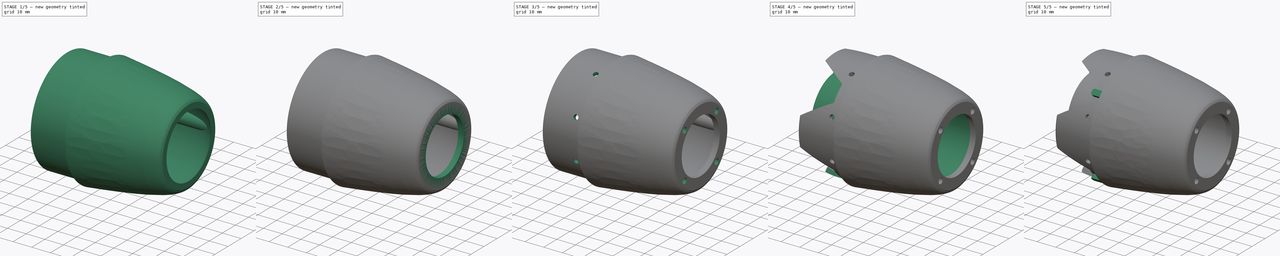
[diagram: build sequence overview — one tinted view per stage of 5, left to right]
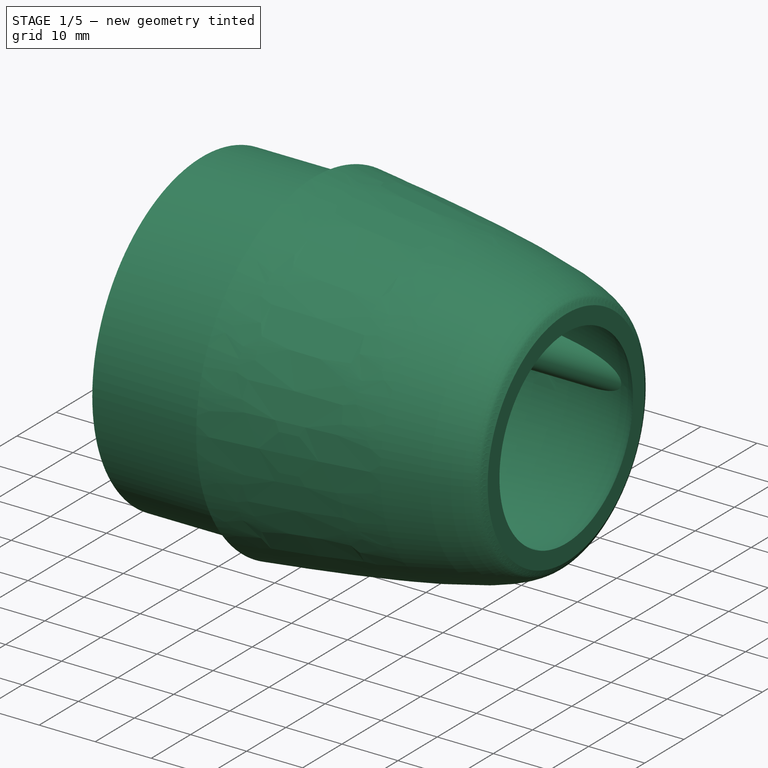
[diagram: stage 1 of 5 — iso view after this stage's code; geometry added in this stage tinted green]
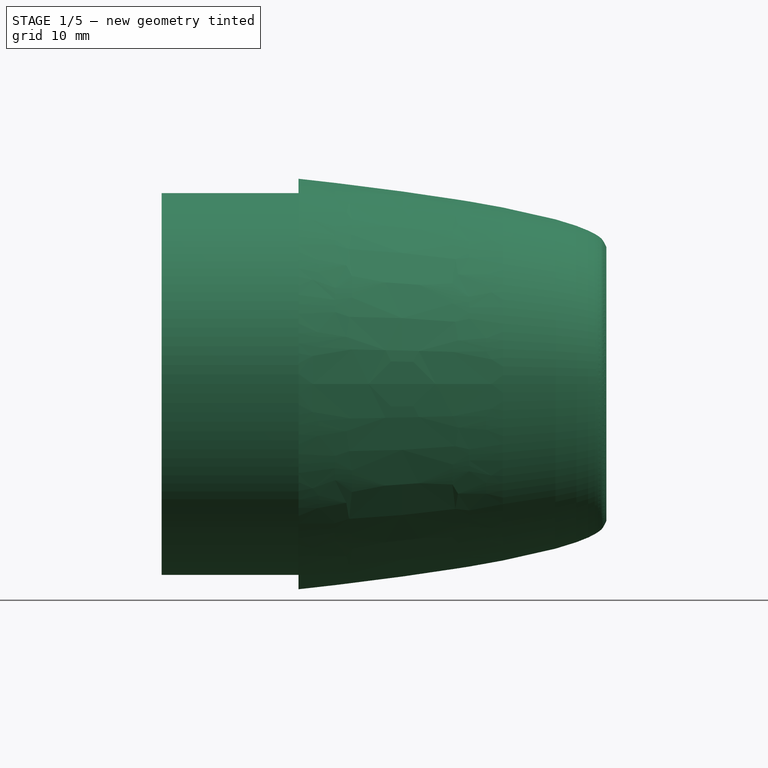
[diagram: stage 1 of 5 — front view after this stage's code; geometry added in this stage tinted green]
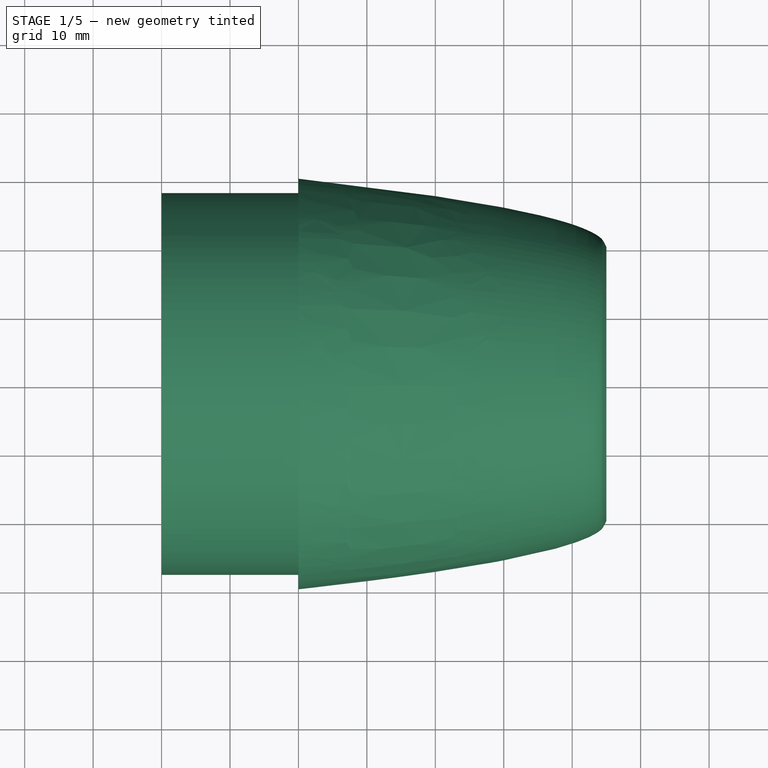
[diagram: stage 1 of 5 — top view after this stage's code; geometry added in this stage tinted green]
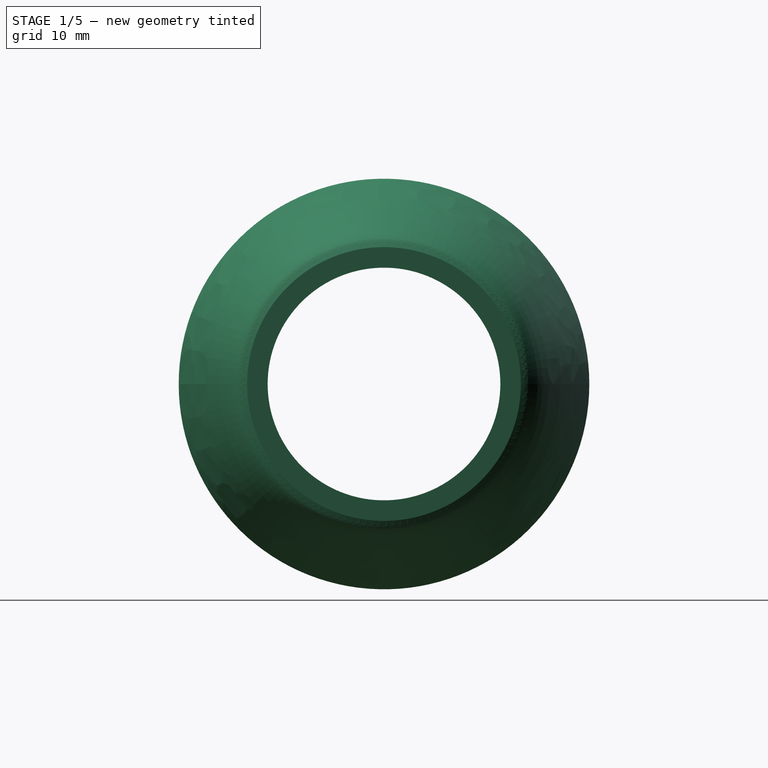
[diagram: stage 1 of 5 — right view after this stage's code; geometry added in this stage tinted green]
FCSTD DOCUMENT  (FreeCAD 1.0R39319 (Git))
Label: rear_transition
License: All rights reserved
LicenseURL: https://en.wikipedia.org/wiki/All_rights_reserved
objects: Sketcher::SketchObject×15, PartDesign::PolarPattern×9, PartDesign::Pocket×6, PartDesign::Pad×5, PartDesign::Plane×4, PartDesign::Fillet×3, PartDesign::Body×2, Part::FeaturePython×1, PartDesign::FeatureBase×1, PartDesign::Revolution×1
note: 102 computed .brp shape members not serialized (recipe doc carries the construction recipe); baked Part::Feature solids carry a one-line shape summary decoded from their .brp

FEATURE [Part::FeaturePython] Transition  # WARN: FeaturePython — macro-defined, semantics opaque (R4)
  AftAutoDiameter = false
  AftCapBarWidth = 3
  AftCapStyle = 0
  AftDiameter = 40
  AftShoulder = false
  AftShoulderAutoDiameter = false
  AftShoulderDiameter = 10
  AftShoulderLength = 0.1
  AftShoulderThickness = 3
  AngleOffset = 0
  AxialOffset = 0
  Clipped = false
  Coefficient = 0.5
  CoreDiameter = 10
  ForeAutoDiameter = false
  ForeCapBarWidth = 3
  ForeCapStyle = 0
  ForeDiameter = 60
  ForeShoulder = true
  ForeShoulderAutoDiameter = false
  ForeShoulderDiameter = 55.8
  ForeShoulderLength = 20
  ForeShoulderThickness = 2
  Length = 45
  LocationReference = 2
  RadialOffset = 0
  RadialReference = 0
  Resolution = 100
  Thickness = 3
  TransitionStyle = 2
  TransitionType = 6
FEATURE [PartDesign::FeatureBase] BaseFeature
  BaseFeature = -> Transition
  Suppressed = false
FEATURE [Sketcher::SketchObject] Sketch
  ArcFitTolerance = 1e-06
  AttachmentSupport = -> [BaseFeature]
  ExternalGeometry = -> [BaseFeature]
  FullyConstrained = false
  MakeInternals = false
  MapMode = 5
  Placement = pos=(-20,0,0) rot=(0.57735,-0.57735,-0.57735;2.0944rad)
  sketch-geometry (8):
    g0: ArcOfCircle CenterX=0 CenterY=23.4279 CenterZ=0 NormalX=0 NormalY=0 NormalZ=1 AngleXU=0 Radius=3.5 StartAngle=3.21795 EndAngle=6.20683
    g1: LineSegment [constr] StartX=-3.4898 StartY=23.1609 StartZ=0 EndX=3.4898 EndY=23.1609 EndZ=0
    g2: ArcOfCircle CenterX=-5.56881 CenterY=23.1609 CenterZ=0 NormalX=0 NormalY=0 NormalZ=1 AngleXU=0 Radius=2.07901 StartAngle=5e-16 EndAngle=1.80676
    g3: ArcOfCircle CenterX=5.56881 CenterY=23.1609 CenterZ=0 NormalX=0 NormalY=0 NormalZ=1 AngleXU=0 Radius=2.07901 StartAngle=1.33484 EndAngle=3.14159
    g4: ArcOfCircle CenterX=0 CenterY=0 CenterZ=0 NormalX=0 NormalY=0 NormalZ=1 AngleXU=0 Radius=27.6434 StartAngle=1.33484 EndAngle=1.80676
    g5: LineSegment StartX=-6.05483 StartY=25.1823 StartZ=0 EndX=-6.46241 EndY=26.8775 EndZ=0
    g6: LineSegment StartX=6.05483 StartY=25.1823 StartZ=0 EndX=6.46241 EndY=26.8775 EndZ=0
    g7: LineSegment [constr] StartX=-3.00543 StartY=26.6609 StartZ=0 EndX=2.84862 EndY=26.6609 EndZ=0
  constraints (20):
    c: Diameter(g0) = 7
    c: PointOnObject(g0,g-2)
    c: Horizontal(g1)
    c: Perpendicular(g2,g1)
    c: Perpendicular(g3,g1)
    c: Coincident(g4,g-1)
    c: Coincident(g3,g6)
    c: Coincident(g0,g3)
    c: Perpendicular(g4,g5) = 4.71239
    c: Perpendicular(g4,g6) = 4.71239
    c: Coincident(g5,g2)
    c: Coincident(g0,g1)
    c: Horizontal(g7)
    c: Tangent(g7,g-3)
    c: DistanceY(g1,g7) = 3.5
    c: Coincident(g2,g0)
    c: Coincident(g1,g0)
    c: Tangent(g3,g-4) = -1.5708
    c: Tangent(g2,g-4) = -1.5708
    c: DistanceY(g4,g0) = 23.4279
FEATURE [PartDesign::Pad] Pad  label="sede_tondo_ensterno"
  BaseFeature = -> BaseFeature
  Direction = (-1,0,0)
  Length = 10
  Length2 = 10
  Profile = -> Sketch
  ReferenceAxis = -> Sketch [N_Axis]
  Refine = true
  Suppressed = false
  Type = 5
FEATURE [Sketcher::SketchObject] Sketch001
  ArcFitTolerance = 1e-06
  AttachmentSupport = -> [Pad]
  ExternalGeometry = -> [Pad]
  FullyConstrained = true
  MakeInternals = false
  MapMode = 5
  Placement = pos=(-20,0,0) rot=(0.57735,-0.57735,-0.57735;2.0944rad)
  sketch-geometry (1):
    g0: Circle CenterX=0 CenterY=23.4279 CenterZ=0 NormalX=0 NormalY=0 NormalZ=1 AngleXU=0 Radius=2.6
  constraints (2):
    c: Diameter(g0) = 5.2
    c: Coincident(g0,g-3)
FEATURE [PartDesign::Pocket] Pocket  label="sede_tondo_interno"
  BaseFeature = -> Pad
  Direction = (1,0,0)
  Length = 30
  Length2 = 5
  Profile = -> Sketch001
  ReferenceAxis = -> Sketch001 [N_Axis]
  Refine = true
  Suppressed = false
  Type = 0
FEATURE [PartDesign::PolarPattern] PolarPattern
  Angle = 360
  Axis = -> Sketch [N_Axis]
  BaseFeature = -> Pocket
  Mode = 0
  Occurrences = 4
  Offset = 120
  Originals = -> [Pad]
  Refine = true
  Suppressed = false
  TransformMode = 0
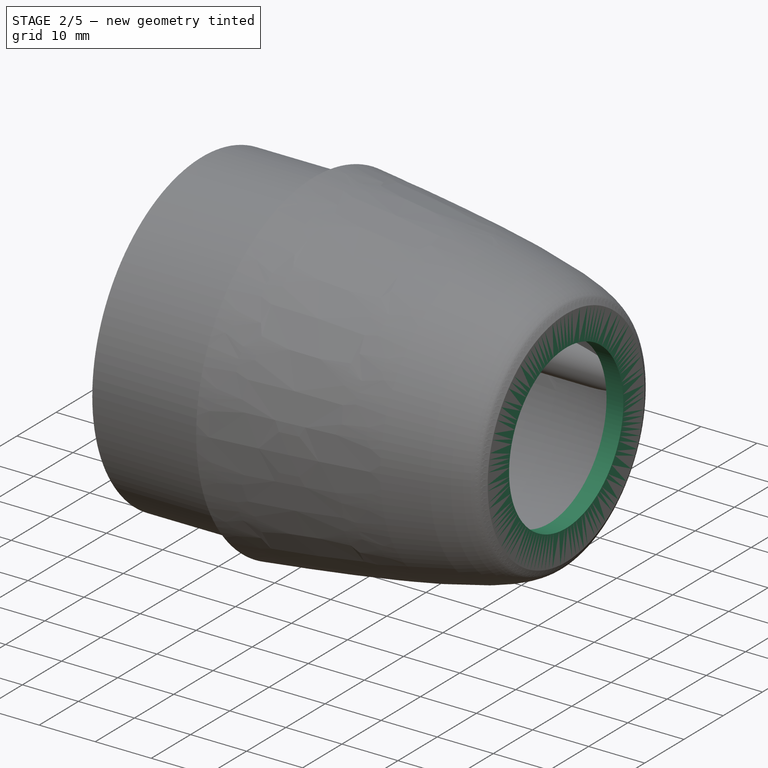
[diagram: stage 2 of 5 — iso view after this stage's code; geometry added in this stage tinted green]
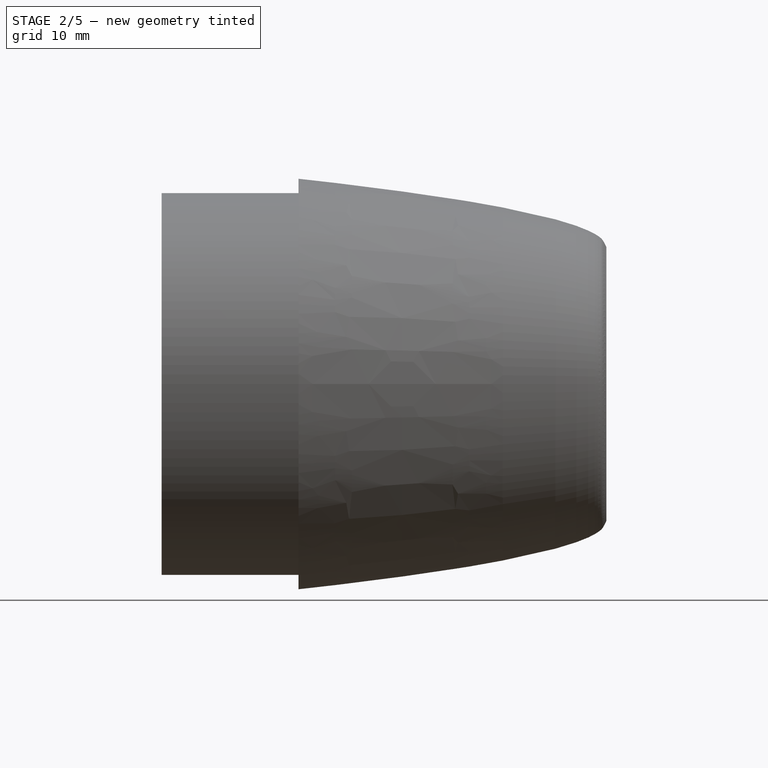
[diagram: stage 2 of 5 — front view after this stage's code; geometry added in this stage tinted green]
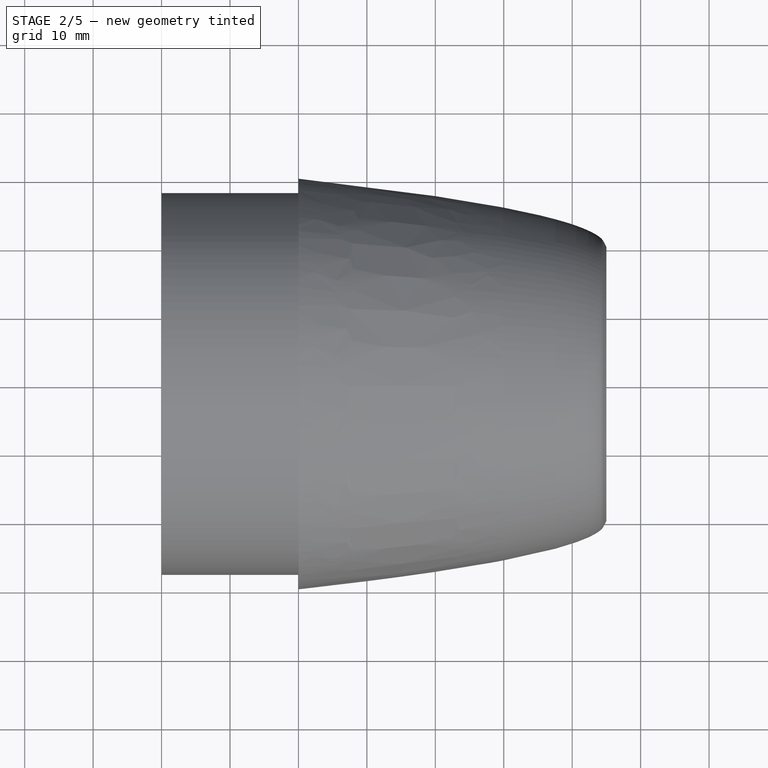
[diagram: stage 2 of 5 — top view after this stage's code; geometry added in this stage tinted green]
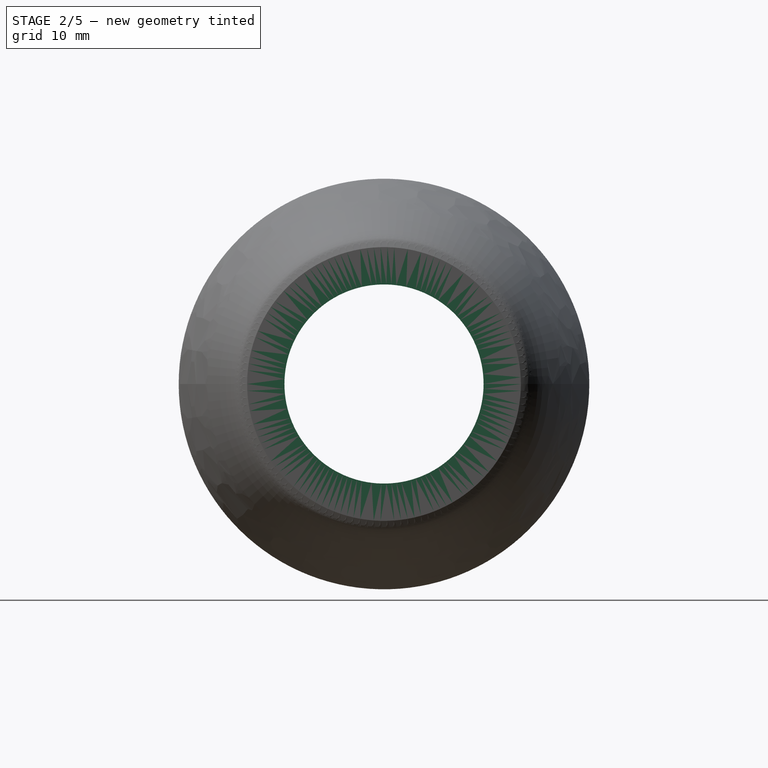
[diagram: stage 2 of 5 — right view after this stage's code; geometry added in this stage tinted green]
FEATURE [PartDesign::PolarPattern] PolarPattern001
  Angle = 360
  Axis = -> Sketch001 [N_Axis]
  BaseFeature = -> PolarPattern
  Mode = 0
  Occurrences = 4
  Offset = 120
  Originals = -> [Pocket]
  Refine = true
  Suppressed = false
  TransformMode = 0
FEATURE [Sketcher::SketchObject] Sketch002
  ArcFitTolerance = 1e-06
  AttachmentSupport = -> [XY_Plane]
  ExternalGeometry = -> [PolarPattern001]
  FullyConstrained = true
  MakeInternals = false
  MapMode = 5
  sketch-geometry (4):
    g0: LineSegment StartX=42 StartY=14.55 StartZ=0 EndX=45 EndY=14.55 EndZ=0
    g1: LineSegment StartX=45 StartY=14.55 StartZ=0 EndX=45 EndY=20 EndZ=0
    g2: LineSegment StartX=45 StartY=20 StartZ=0 EndX=42 EndY=20 EndZ=0
    g3: LineSegment StartX=42 StartY=20 StartZ=0 EndX=42 EndY=14.55 EndZ=0
  constraints (11):
    c: Coincident(g0,g1)
    c: Coincident(g1,g2)
    c: Coincident(g2,g3)
    c: Coincident(g3,g0)
    c: Horizontal(g0)
    c: Horizontal(g2)
    c: Vertical(g1)
    c: Vertical(g3)
    c: Coincident(g1,g-3)
    c: DistanceX(g0,g0) = 3
    c: DistanceY(g-1,g0) = 14.55
FEATURE [PartDesign::Revolution] Revolution  label="base"
  Angle = 360
  Angle2 = 60
  Axis = (1,0,0)
  Base = (0,0,0)
  BaseFeature = -> PolarPattern001
  Profile = -> Sketch002
  ReferenceAxis = -> Sketch002 [H_Axis]
  Refine = true
  Suppressed = false
  Type = 0
FEATURE [Sketcher::SketchObject] Sketch004
  ArcFitTolerance = 1e-06
  AttachmentSupport = -> [Revolution]
  ExternalGeometry = -> [Revolution]
  FullyConstrained = true
  MakeInternals = false
  MapMode = 5
  Placement = pos=(10,0,0) rot=(0.57735,-0.57735,-0.57735;2.0944rad)
  sketch-geometry (1):
    g0: Circle CenterX=0 CenterY=23.4279 CenterZ=0 NormalX=0 NormalY=0 NormalZ=1 AngleXU=0 Radius=1.25
  constraints (2):
    c: Diameter(g0) = 2.5
    c: Coincident(g0,g-3)
FEATURE [PartDesign::Pad] Pad001  label="sede_tondo_interno_1"
  BaseFeature = -> Revolution
  Direction = (-1,0,0)
  Length = 10
  Length2 = 10
  Profile = -> Sketch004
  ReferenceAxis = -> Sketch004 [N_Axis]
  Refine = true
  Suppressed = false
  Type = 0
FEATURE [PartDesign::PolarPattern] PolarPattern002
  Angle = 360
  Axis = -> Sketch004 [N_Axis]
  BaseFeature = -> Pad001
  Mode = 0
  Occurrences = 4
  Offset = 120
  Originals = -> [Pad001]
  Refine = true
  Suppressed = false
  TransformMode = 0
FEATURE [PartDesign::Fillet] Fillet
  Base = -> PolarPattern002 [Edge110,Edge112,Edge114,Edge116]
  BaseFeature = -> PolarPattern002
  Radius = 0.5
  Refine = true
  SupportTransform = false
  Suppressed = false
  UseAllEdges = false
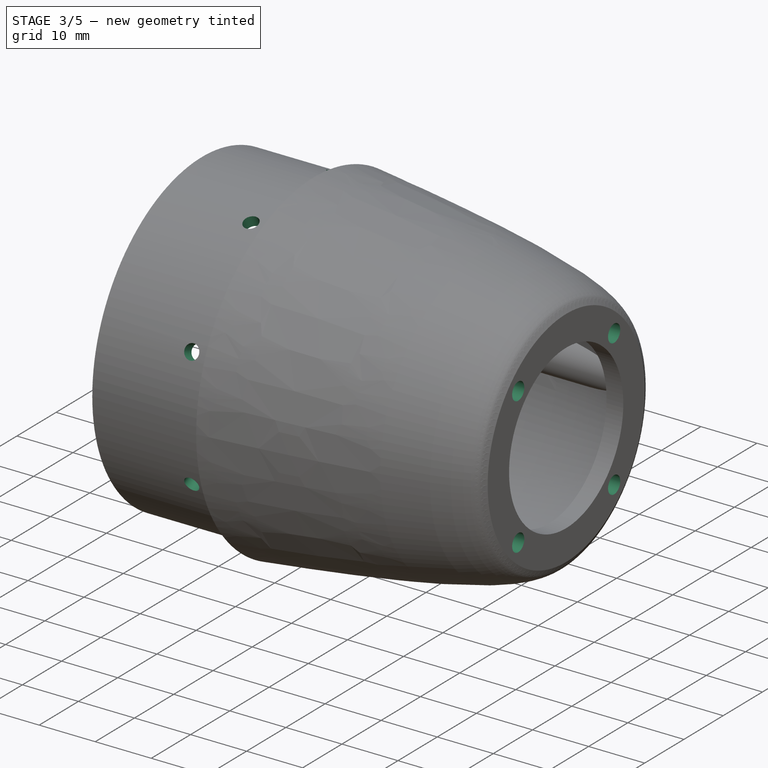
[diagram: stage 3 of 5 — iso view after this stage's code; geometry added in this stage tinted green]
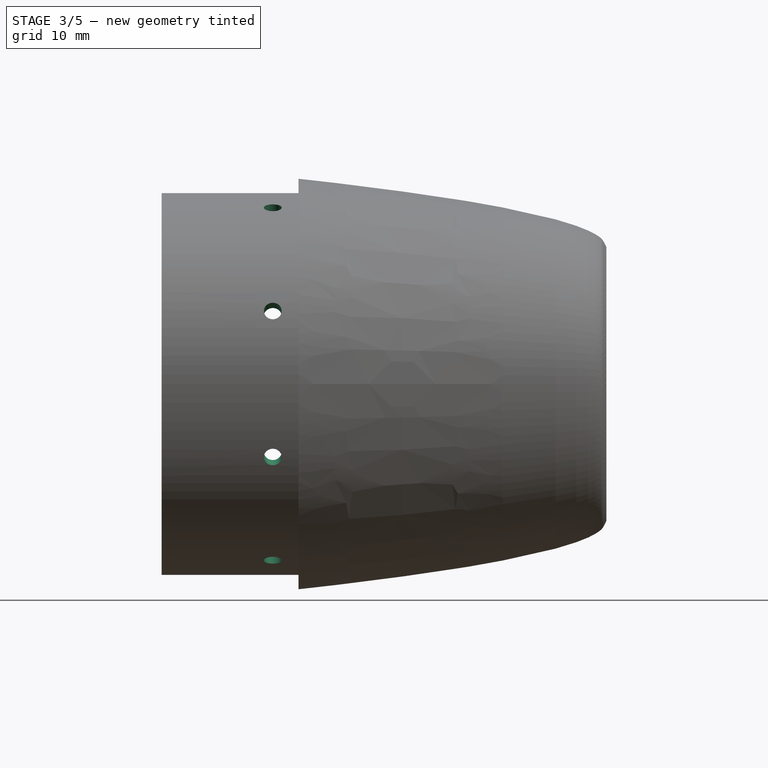
[diagram: stage 3 of 5 — front view after this stage's code; geometry added in this stage tinted green]
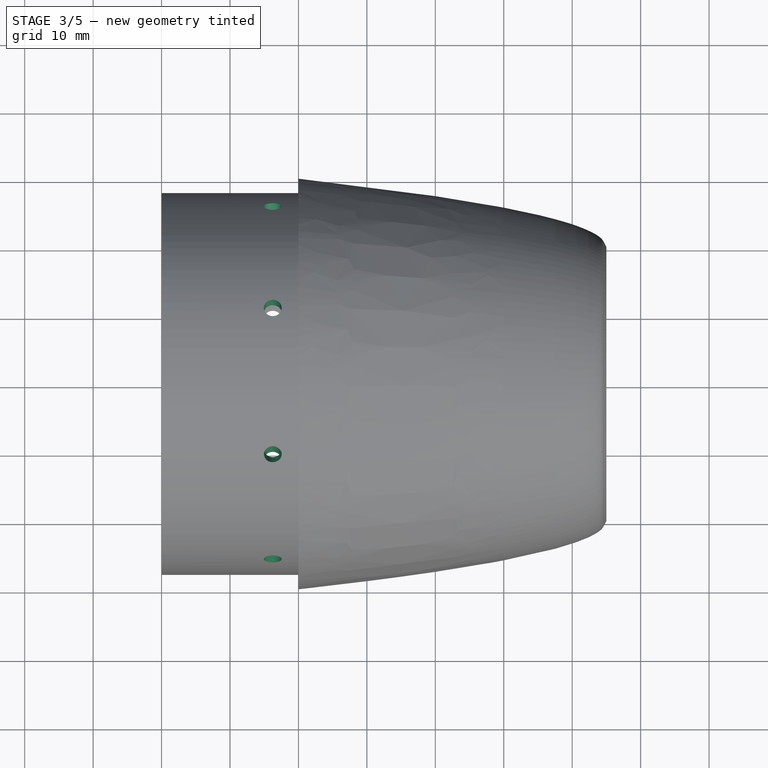
[diagram: stage 3 of 5 — top view after this stage's code; geometry added in this stage tinted green]
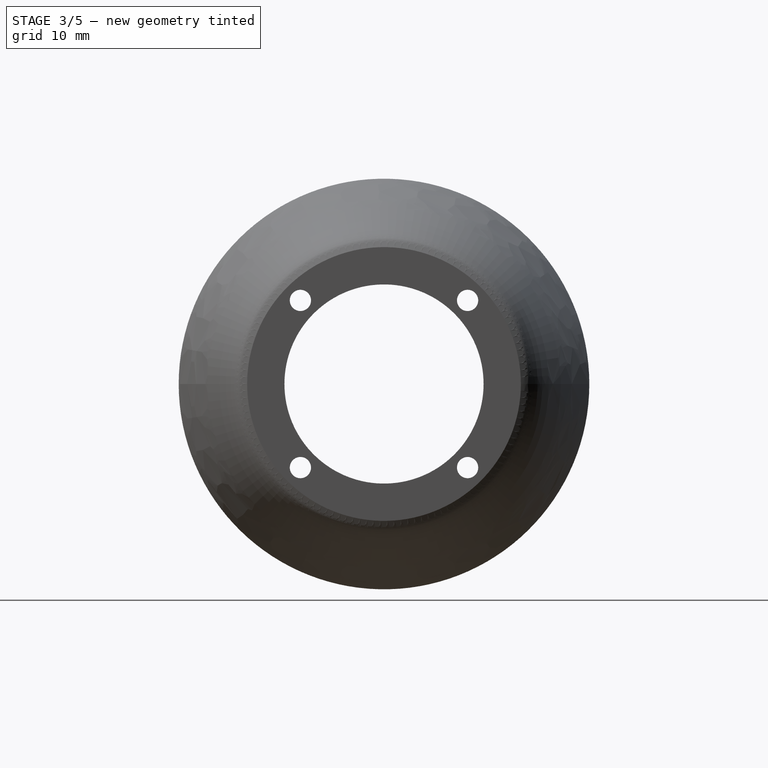
[diagram: stage 3 of 5 — right view after this stage's code; geometry added in this stage tinted green]
FEATURE [Sketcher::SketchObject] Sketch005
  ArcFitTolerance = 1e-06
  FullyConstrained = true
  MakeInternals = false
  MapMode = 5
  Placement = pos=(-20,0,0) rot=(0.57735,-0.57735,-0.57735;2.0944rad)
  sketch-geometry (3):
    g0: LineSegment StartX=0 StartY=0 StartZ=0 EndX=-20.4354 EndY=20.4354 EndZ=0
    g1: LineSegment StartX=0 StartY=0 StartZ=0 EndX=-11.0596 EndY=26.7001 EndZ=0
    g2: LineSegment StartX=0 StartY=0 StartZ=0 EndX=-26.7001 EndY=11.0596 EndZ=0
  constraints (9):
    c: Coincident(g0,g-1)
    c: PointOnObject(g0,g-3)
    c: Angle(g-1,g0) = 2.35619
    c: Coincident(g1,g0)
    c: PointOnObject(g1,g-3)
    c: Coincident(g2,g0)
    c: PointOnObject(g2,g-3)
    c: Angle(g1,g2) = 0.785398
    c: Angle(g1,g0) = 0.392699
FEATURE [Sketcher::SketchObject] Sketch007
  ArcFitTolerance = 1e-06
  AttachmentSupport = -> [Fillet]
  ExternalGeometry = -> [Sketch005,Fillet]
  FullyConstrained = true
  MakeInternals = false
  MapMode = 5
  Placement = pos=(45,0,0) rot=(0.57735,0.57735,0.57735;2.0944rad)
  sketch-geometry (3):
    g0: GeomPoint [constr] X=10.2884 Y=10.2884 Z=0
    g1: GeomPoint [constr] X=14.1421 Y=14.1421 Z=0
    g2: Circle CenterX=12.2153 CenterY=12.2153 CenterZ=0 NormalX=0 NormalY=0 NormalZ=1 AngleXU=0 Radius=1.55
  constraints (6):
    c: PointOnObject(g0,g-4)
    c: PointOnObject(g1,g-5)
    c: PointOnObject(g2,g-3)
    c: Diameter(g2) = 3.1
    c: PointOnObject(g0,g-3)
    c: Symmetric(g1,g0,g2)
FEATURE [PartDesign::Pocket] Pocket002
  BaseFeature = -> Fillet
  Direction = (-1,0,0)
  Length = 5
  Length2 = 5
  Profile = -> Sketch007
  ReferenceAxis = -> Sketch007 [N_Axis]
  Refine = true
  Suppressed = false
  Type = 1
FEATURE [PartDesign::PolarPattern] PolarPattern004
  Angle = 360
  Axis = -> Sketch007 [N_Axis]
  BaseFeature = -> Pocket002
  Mode = 0
  Occurrences = 4
  Offset = 120
  Originals = -> [Pocket002]
  Refine = true
  Suppressed = false
  TransformMode = 0
FEATURE [PartDesign::Plane] DatumPlane
  AttachmentSupport = -> [PolarPattern004,Sketch005]
  Length = 93.0671
  MapMode = 6
  Placement = pos=(-20,25.7762,10.6769) rot=(-0.485653,-0.485653,-0.726831;1.88458rad)
  ResizeMode = 0
  Width = 84.8033
FEATURE [Sketcher::SketchObject] Sketch008
  ArcFitTolerance = 1e-06
  AttachmentSupport = -> [DatumPlane]
  ExternalGeometry = -> [PolarPattern004]
  FullyConstrained = true
  MakeInternals = false
  MapMode = 5
  Placement = pos=(-20,25.7762,10.6769) rot=(-0.485653,-0.485653,-0.726831;1.88458rad)
  sketch-geometry (1):
    g0: Circle CenterX=0 CenterY=16.25 CenterZ=0 NormalX=0 NormalY=0 NormalZ=1 AngleXU=0 Radius=1.3
  constraints (3):
    c: PointOnObject(g0,g-2)
    c: Diameter(g0) = 2.6
    c: Distance(g0,g-3) = 3.75
FEATURE [PartDesign::Pocket] Pocket003  label="sede_vite_fusoliera_1"
  BaseFeature = -> PolarPattern004
  Direction = (-1e-16,-0.92388,-0.382683)
  Length = 5
  Length2 = 5
  Profile = -> Sketch008
  ReferenceAxis = -> Sketch008 [N_Axis]
  Refine = true
  Suppressed = false
  Type = 0
FEATURE [PartDesign::PolarPattern] PolarPattern005
  Angle = 360
  Axis = -> X_Axis
  BaseFeature = -> Pocket003
  Mode = 0
  Occurrences = 4
  Offset = 120
  Originals = -> [Pocket003]
  Refine = true
  Suppressed = false
  TransformMode = 0
FEATURE [PartDesign::Plane] DatumPlane001
  AttachmentSupport = -> [PolarPattern005,Sketch005]
  Length = 93.0215
  MapMode = 6
  Placement = pos=(-20,10.6769,25.7762) rot=(-0.19148,-0.19148,-0.962637;1.60887rad)
  ResizeMode = 0
  Width = 84.7994
FEATURE [Sketcher::SketchObject] Sketch009
  ArcFitTolerance = 1e-06
  AttachmentSupport = -> [DatumPlane001]
  ExternalGeometry = -> [PolarPattern005]
  FullyConstrained = true
  MakeInternals = false
  MapMode = 5
  Placement = pos=(-20,10.6769,25.7762) rot=(-0.19148,-0.19148,-0.962637;1.60887rad)
  sketch-geometry (1):
    g0: Circle CenterX=0 CenterY=16.25 CenterZ=0 NormalX=0 NormalY=0 NormalZ=1 AngleXU=0 Radius=1.3
  constraints (3):
    c: PointOnObject(g0,g-2)
    c: Diameter(g0) = 2.6
    c: Distance(g0,g-3) = 3.75
FEATURE [PartDesign::Pocket] Pocket004  label="sede_vite_fusoliera_2"
  BaseFeature = -> PolarPattern005
  Direction = (0,-0.382683,-0.92388)
  Length = 5
  Length2 = 5
  Profile = -> Sketch009
  ReferenceAxis = -> Sketch009 [N_Axis]
  Refine = true
  Suppressed = false
  Type = 0
FEATURE [PartDesign::PolarPattern] PolarPattern006
  Angle = 360
  Axis = -> X_Axis
  BaseFeature = -> Pocket004
  Mode = 0
  Occurrences = 4
  Offset = 120
  Originals = -> [Pocket004]
  Refine = true
  Suppressed = false
  TransformMode = 0
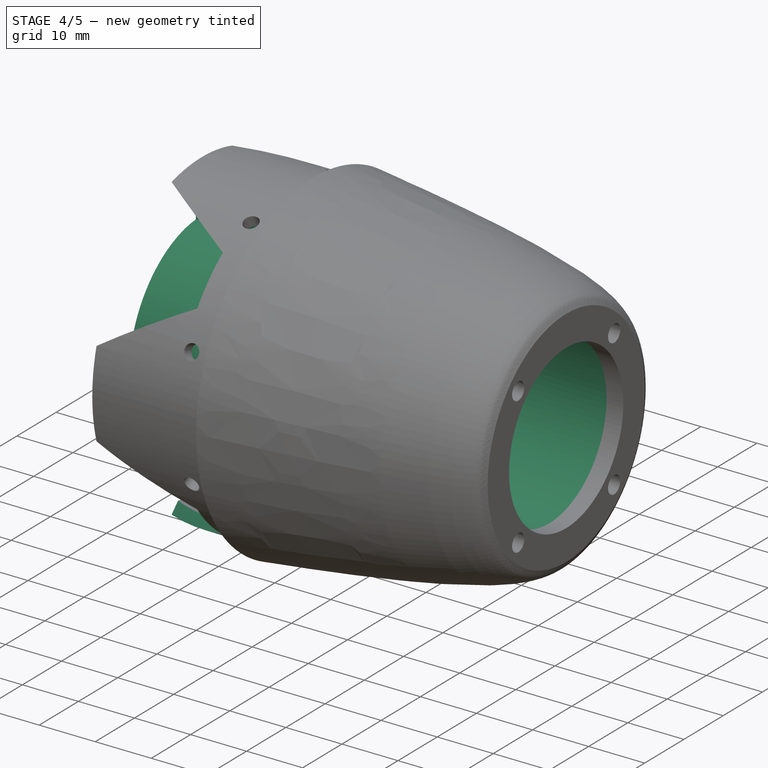
[diagram: stage 4 of 5 — iso view after this stage's code; geometry added in this stage tinted green]
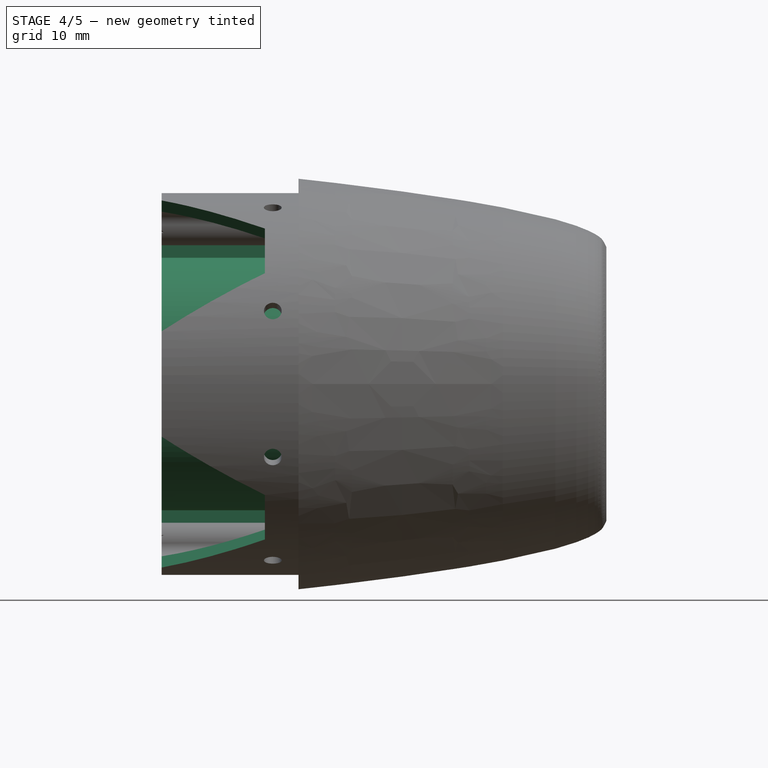
[diagram: stage 4 of 5 — front view after this stage's code; geometry added in this stage tinted green]
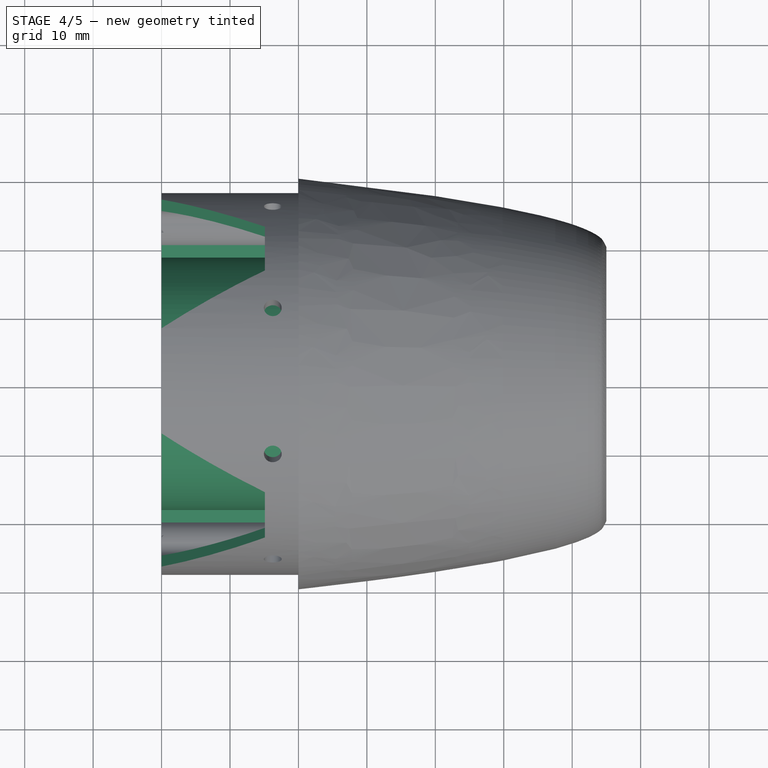
[diagram: stage 4 of 5 — top view after this stage's code; geometry added in this stage tinted green]
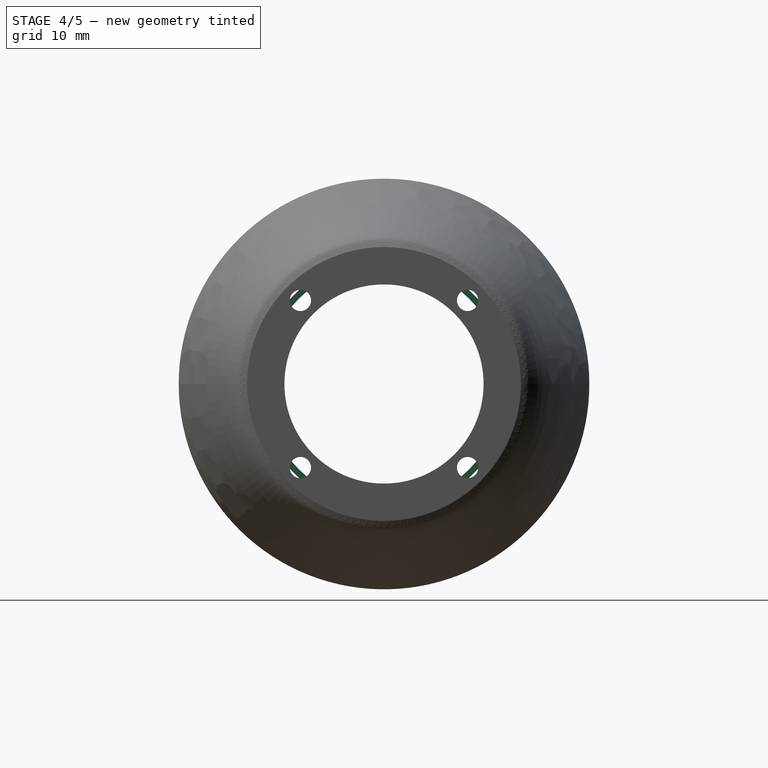
[diagram: stage 4 of 5 — right view after this stage's code; geometry added in this stage tinted green]
FEATURE [PartDesign::Plane] DatumPlane002
  AttachmentSupport = -> [PolarPattern006,Sketch005]
  Length = 100.089
  MapMode = 6
  Placement = pos=(-20,19.7283,19.7283) rot=(-0.357407,-0.357407,-0.862856;1.71777rad)
  ResizeMode = 0
  Width = 85.399
FEATURE [Sketcher::SketchObject] Sketch010
  ArcFitTolerance = 1e-06
  AttachmentSupport = -> [DatumPlane002]
  ExternalGeometry = -> [PolarPattern006]
  FullyConstrained = true
  MakeInternals = false
  MapMode = 5
  Placement = pos=(-20,19.7283,19.7283) rot=(-0.357407,-0.357407,-0.862856;1.71777rad)
  sketch-geometry (5):
    g0: LineSegment StartX=-4.6 StartY=15.1 StartZ=0 EndX=4.6 EndY=15.1 EndZ=0
    g1: LineSegment StartX=-13.5252 StartY=-3.6e-15 StartZ=0 EndX=-4.6 EndY=15.1 EndZ=0
    g2: LineSegment [constr] StartX=13.5252 StartY=26.8091 StartZ=0 EndX=13.5252 EndY=-3.6e-15 EndZ=0
    g3: LineSegment StartX=4.6 StartY=15.1 StartZ=0 EndX=13.5252 EndY=-2.8e-15 EndZ=0
    g4: LineSegment StartX=-13.5252 StartY=-3.6e-15 StartZ=0 EndX=13.5252 EndY=-3.6e-15 EndZ=0
  constraints (11):
    c: Coincident(g1,g-5)
    c: Coincident(g1,g0)
    c: Symmetric(g0,g0,g-2)
    c: DistanceX(g0,g0) = 9.2
    c: DistanceY(g-1,g0) = 15.1
    c: Coincident(g2,g-6)
    c: Coincident(g2,g-5)
    c: Coincident(g3,g0)
    c: Coincident(g3,g2)
    c: Coincident(g4,g1)
    c: Coincident(g4,g2)
FEATURE [PartDesign::Pocket] Pocket005
  BaseFeature = -> PolarPattern006
  Direction = (-1e-16,-0.707107,-0.707107)
  Length = 10
  Length2 = 5
  Profile = -> Sketch010
  ReferenceAxis = -> Sketch010 [N_Axis]
  Refine = true
  Suppressed = false
  Type = 0
FEATURE [PartDesign::PolarPattern] PolarPattern007
  Angle = 360
  Axis = -> X_Axis
  BaseFeature = -> Pocket005
  Mode = 0
  Occurrences = 4
  Offset = 120
  Originals = -> [Pocket005]
  Refine = true
  Suppressed = false
  TransformMode = 0
FEATURE [Sketcher::SketchObject] Sketch012
  ArcFitTolerance = 1e-06
  FullyConstrained = false
  MakeInternals = false
  MapMode = 5
  Placement = pos=(-20,0,0) rot=(0.57735,-0.57735,-0.57735;2.0944rad)
  sketch-geometry (4):
    g0: LineSegment StartX=-1.5 StartY=20.5718 StartZ=0 EndX=-1.5 EndY=17.884 EndZ=0
    g1: LineSegment StartX=-1.5 StartY=17.884 StartZ=0 EndX=1.5 EndY=17.884 EndZ=0
    g2: LineSegment StartX=1.5 StartY=17.884 StartZ=0 EndX=1.5 EndY=20.5718 EndZ=0
    g3: LineSegment StartX=1.5 StartY=20.5718 StartZ=0 EndX=-1.5 EndY=20.5718 EndZ=0
  constraints (10):
    c: Coincident(g0,g1)
    c: Coincident(g1,g2)
    c: Coincident(g2,g3)
    c: Coincident(g3,g0)
    c: Vertical(g0)
    c: Vertical(g2)
    c: Horizontal(g1)
    c: Horizontal(g3)
    c: Distance(g0,g2) = 3
    c: DistanceX(g0,g-1) = 1.5
FEATURE [PartDesign::Pad] Pad003
  BaseFeature = -> PolarPattern007
  Direction = (-1,-1e-16,1e-16)
  Length = 64
  Length2 = 10
  Profile = -> Sketch012
  ReferenceAxis = -> Sketch012 [N_Axis]
  Refine = true
  Reversed = true
  Suppressed = false
  Type = 0
FEATURE [PartDesign::PolarPattern] PolarPattern008
  Angle = 360
  Axis = -> Sketch012 [N_Axis]
  BaseFeature = -> Pad003
  Mode = 0
  Occurrences = 4
  Offset = 120
  Originals = -> [Pad003]
  Refine = true
  Suppressed = false
  TransformMode = 0
FEATURE [Sketcher::SketchObject] Sketch013
  ArcFitTolerance = 1e-06
  AttachmentSupport = -> [PolarPattern008]
  FullyConstrained = true
  MakeInternals = false
  MapMode = 5
  Placement = pos=(42,0,0) rot=(0.57735,-0.57735,-0.57735;2.0944rad)
  sketch-geometry (2):
    g0: Circle CenterX=0 CenterY=0 CenterZ=0 NormalX=0 NormalY=0 NormalZ=1 AngleXU=0 Radius=17.6
    g1: Circle CenterX=0 CenterY=0 CenterZ=0 NormalX=0 NormalY=0 NormalZ=1 AngleXU=0 Radius=18.5
  constraints (4):
    c: Diameter(g0) = 35.2
    c: Coincident(g0,g-1)
    c: Diameter(g1) = 37
    c: Coincident(g1,g0)
FEATURE [PartDesign::Pad] Pad004
  BaseFeature = -> PolarPattern008
  Direction = (-1,0,0)
  Length = 62
  Length2 = 10
  Profile = -> Sketch013
  ReferenceAxis = -> Sketch013 [N_Axis]
  Refine = true
  Suppressed = false
  Type = 0
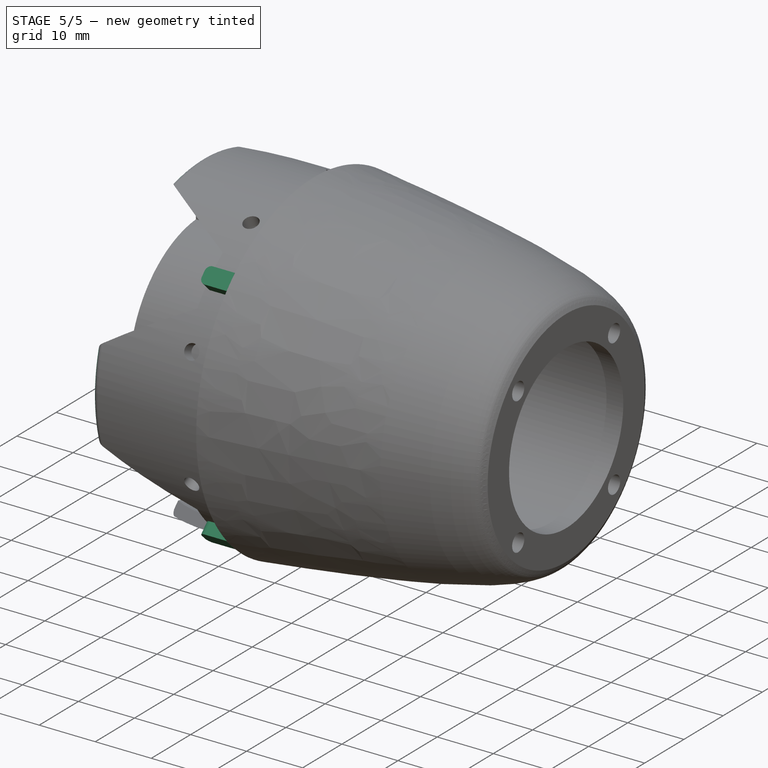
[diagram: stage 5 of 5 — iso view after this stage's code; geometry added in this stage tinted green]
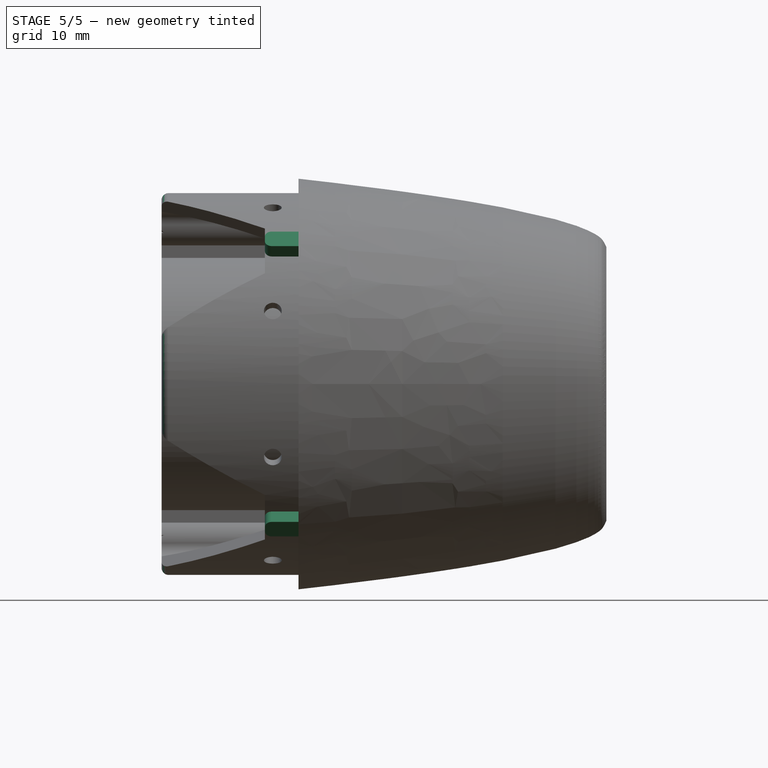
[diagram: stage 5 of 5 — front view after this stage's code; geometry added in this stage tinted green]
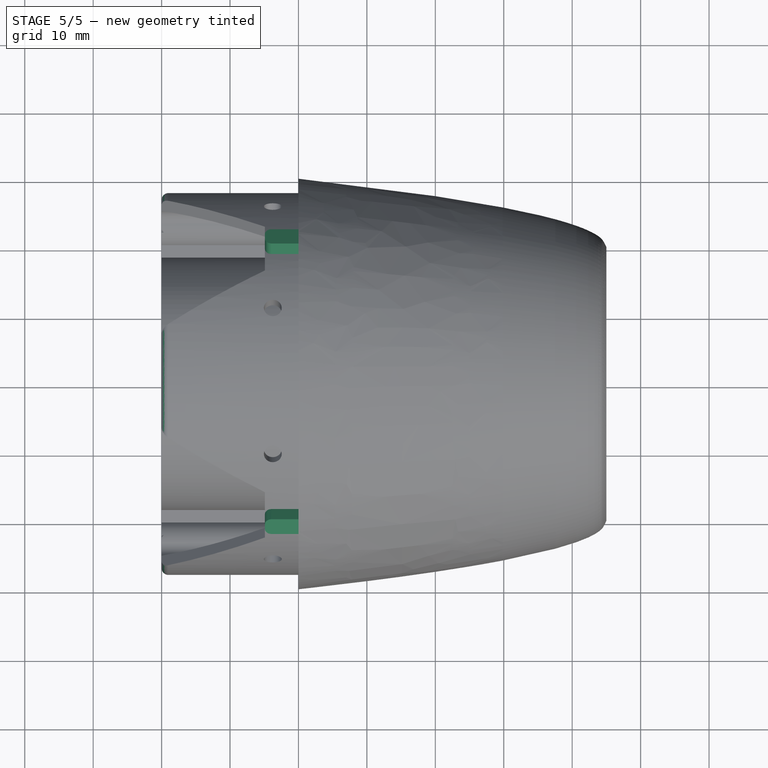
[diagram: stage 5 of 5 — top view after this stage's code; geometry added in this stage tinted green]
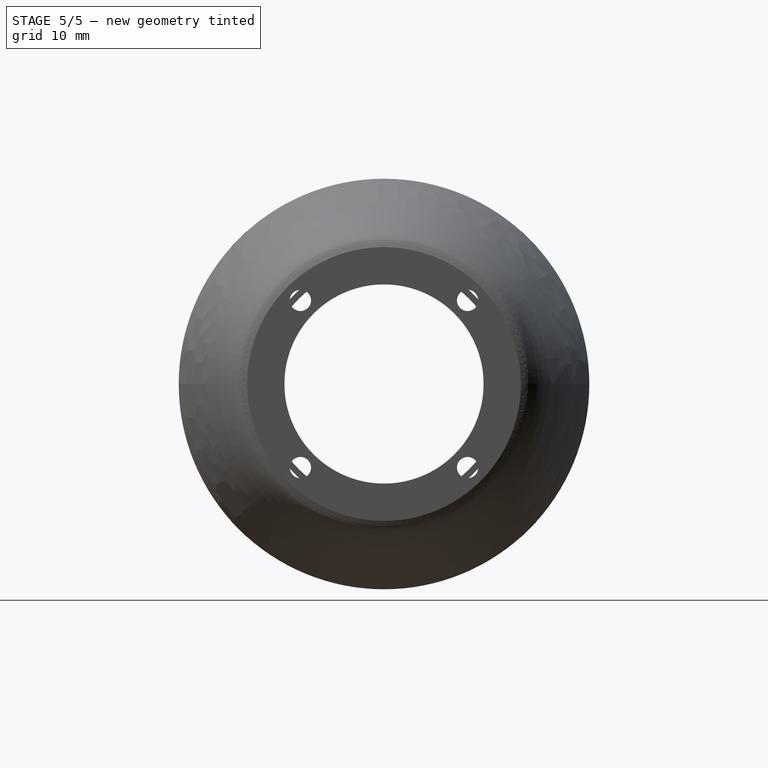
[diagram: stage 5 of 5 — right view after this stage's code; geometry added in this stage tinted green]
FEATURE [PartDesign::Fillet] Fillet001
  Base = -> Pad004 [Edge149,Edge154,Edge159,Edge164,Edge144]
  BaseFeature = -> Pad004
  Radius = 1
  Refine = true
  SupportTransform = false
  Suppressed = false
  UseAllEdges = false
FEATURE [Sketcher::SketchObject] Sketch014
  ArcFitTolerance = 1e-06
  AttachmentSupport = -> [Fillet001]
  FullyConstrained = true
  MakeInternals = false
  MapMode = 5
  Placement = pos=(-4.9,7e-16,4e-16) rot=(0.57735,-0.57735,-0.57735;2.0944rad)
FEATURE [Sketcher::SketchObject] Sketch015
  ArcFitTolerance = 1e-06
  AttachmentSupport = -> [Fillet001]
  ExternalGeometry = -> [Sketch005,Fillet001]
  FullyConstrained = true
  MakeInternals = false
  MapMode = 5
  Placement = pos=(0,0,0) rot=(0.57735,-0.57735,-0.57735;2.0944rad)
  sketch-geometry (1):
    g0: LineSegment StartX=0 StartY=0 StartZ=0 EndX=-21.2132 EndY=21.2132 EndZ=0
  constraints (3):
    c: Coincident(g0,g-1)
    c: PointOnObject(g0,g-4)
    c: Parallel(g0,g-3)
FEATURE [PartDesign::Plane] DatumPlane003
  AttachmentSupport = -> [Sketch015]
  Length = 85.399
  MapMode = 7
  Placement = pos=(0,21.2132,21.2132) rot=(1,0,0;2.35619rad)
  ResizeMode = 0
  Width = 100.089
FEATURE [Sketcher::SketchObject] Sketch016
  ArcFitTolerance = 1e-06
  AttachmentSupport = -> [DatumPlane003]
  ExternalGeometry = -> [Fillet001]
  FullyConstrained = false
  MakeInternals = false
  MapMode = 5
  Placement = pos=(0,21.2132,21.2132) rot=(1,0,0;2.35619rad)
  sketch-geometry (4):
    g0: LineSegment StartX=-4.9 StartY=1.5 StartZ=0 EndX=-4.9 EndY=-1.5 EndZ=0
    g1: LineSegment StartX=-4.9 StartY=-1.5 StartZ=0 EndX=0 EndY=-1.5 EndZ=0
    g2: LineSegment StartX=0 StartY=-1.5 StartZ=0 EndX=0 EndY=1.5 EndZ=0
    g3: LineSegment StartX=0 StartY=1.5 StartZ=0 EndX=-4.9 EndY=1.5 EndZ=0
  constraints (9):
    c: Coincident(g0,g1)
    c: Coincident(g1,g2)
    c: Coincident(g2,g3)
    c: Coincident(g3,g0)
    c: Horizontal(g1)
    c: Horizontal(g3)
    c: Tangent(g2,g-3)
    c: DistanceY(g1,g2) = 3
    c: Symmetric(g2,g1,g-1)
FEATURE [PartDesign::Pad] Pad005
  BaseFeature = -> Fillet001
  Direction = (0,-0.707107,-0.707107)
  Length = 3
  Length2 = 10
  Profile = -> Sketch016
  ReferenceAxis = -> Sketch016 [N_Axis]
  Refine = true
  Suppressed = false
  Type = 0
FEATURE [PartDesign::PolarPattern] PolarPattern009
  Angle = 360
  Axis = -> X_Axis
  BaseFeature = -> Pad005
  Mode = 0
  Occurrences = 4
  Offset = 120
  Originals = -> [Pad005]
  Refine = true
  Suppressed = false
  TransformMode = 0
FEATURE [Sketcher::SketchObject] Sketch017
  ArcFitTolerance = 1e-06
  AttachmentSupport = -> [PolarPattern009]
  ExternalGeometry = -> [PolarPattern009]
  FullyConstrained = false
  MakeInternals = false
  MapMode = 5
  Placement = pos=(0,0,0) rot=(0.57735,-0.57735,-0.57735;2.0944rad)
  sketch-geometry (2):
    g0: Circle CenterX=0 CenterY=0 CenterZ=0 NormalX=0 NormalY=0 NormalZ=1 AngleXU=0 Radius=30
    g1: Circle CenterX=0 CenterY=0 CenterZ=0 NormalX=0 NormalY=0 NormalZ=1 AngleXU=0 Radius=31.1242
  constraints (3):
    c: Coincident(g0,g-1)
    c: Tangent(g0,g-3)
    c: Coincident(g1,g0)
FEATURE [PartDesign::Pocket] Pocket006
  BaseFeature = -> PolarPattern009
  Direction = (1,0,0)
  Length = 5
  Length2 = 5
  Profile = -> Sketch017
  ReferenceAxis = -> Sketch017 [N_Axis]
  Refine = true
  Suppressed = false
  Type = 0
FEATURE [PartDesign::Fillet] Fillet002
  Base = -> Pocket006 [Edge402,Edge375,Edge404,Edge396,Edge103,Edge394,Edge91,Edge93]
  BaseFeature = -> Pocket006
  Radius = 1
  Refine = true
  SupportTransform = false
  Suppressed = false
  UseAllEdges = false
FEATURE [PartDesign::Body] Body
  AllowCompound = false
  BaseFeature = -> Transition
  Group = -> [BaseFeature,Sketch,Pad,Sketch001,Pocket,PolarPattern,PolarPattern001,Sketch002,Revolution,Sketch004,Pad001,PolarPattern002,Fillet,Sketch007,Pocket002,PolarPattern004,Sketch005,DatumPlane,Sketch008,Pocket003,PolarPattern005,DatumPlane001,Sketch009,Pocket004,PolarPattern006,DatumPlane002,Sketch010,Pocket005,PolarPattern007,Sketch012,Pad003,PolarPattern008,Sketch013,Pad004,Fillet001,Sketch014,+8 more]
  Origin = -> Origin
  Tip = -> Fillet002
FEATURE [PartDesign::Body] Body001
  AllowCompound = false
  Origin = -> Origin001
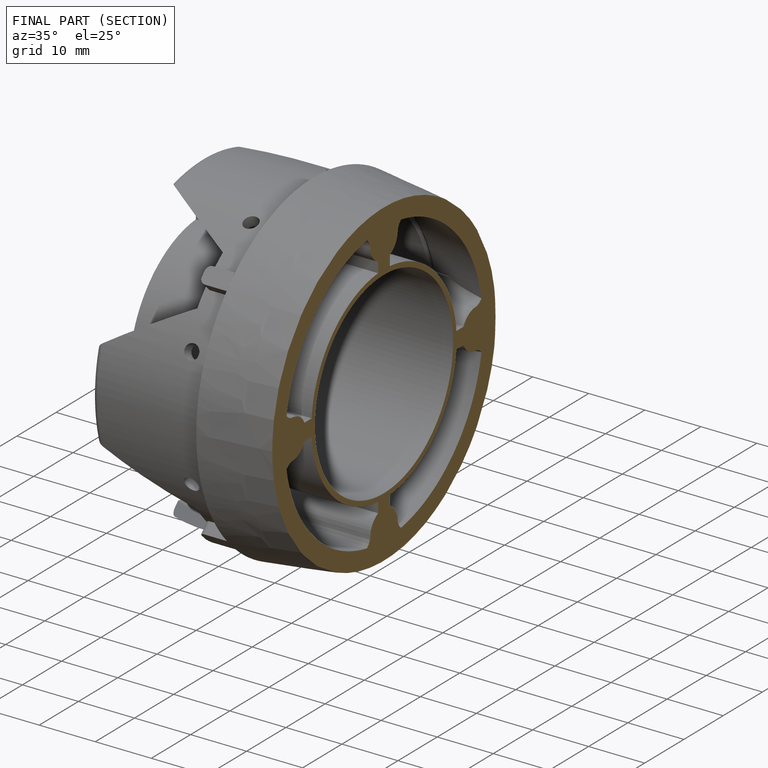
[diagram: finished part — half-section view (interior)]
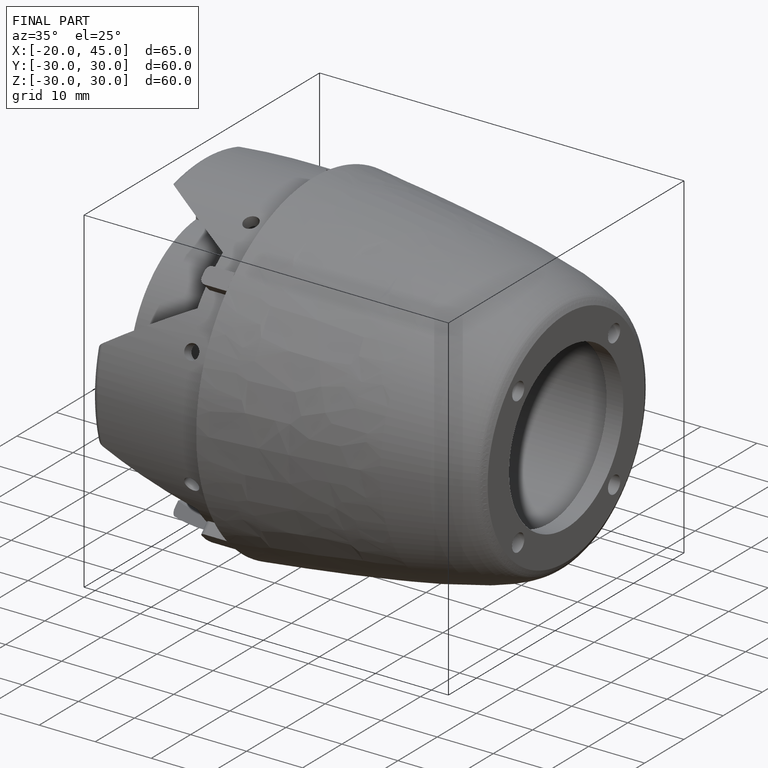
[diagram: finished part — iso view with bounding-box wireframe]
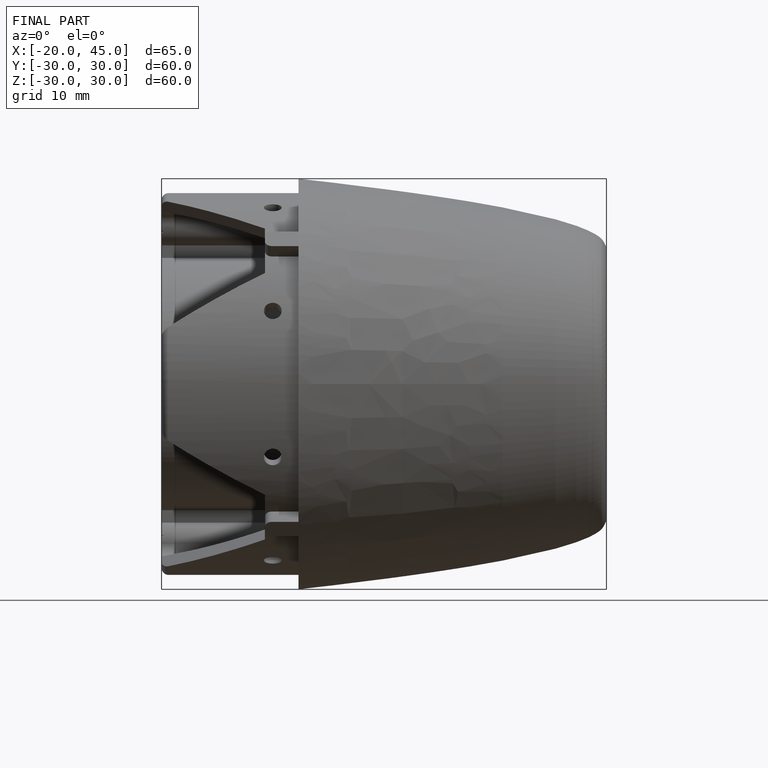
[diagram: finished part — front view with bounding-box wireframe]
